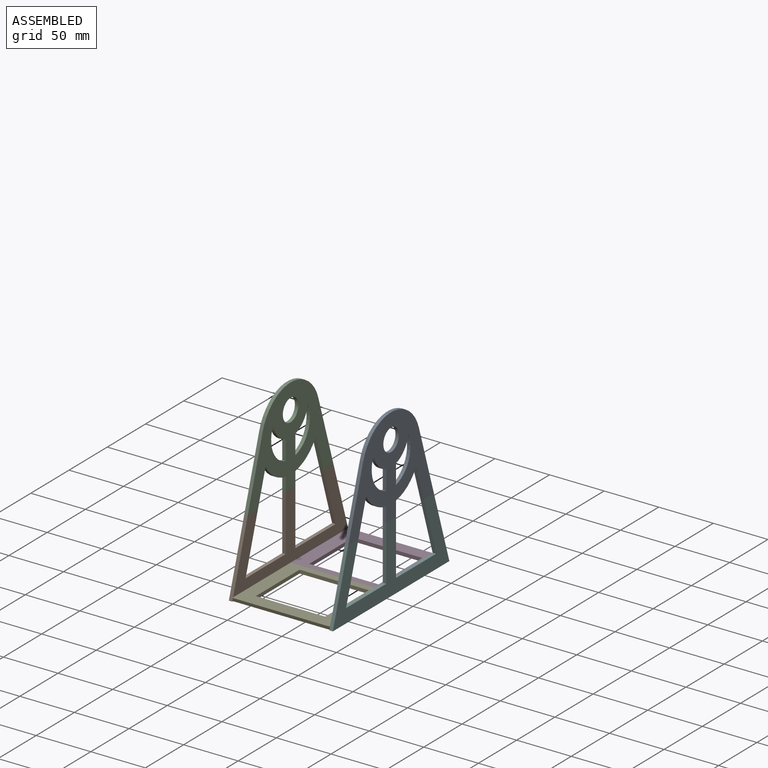
[diagram: assembled view]
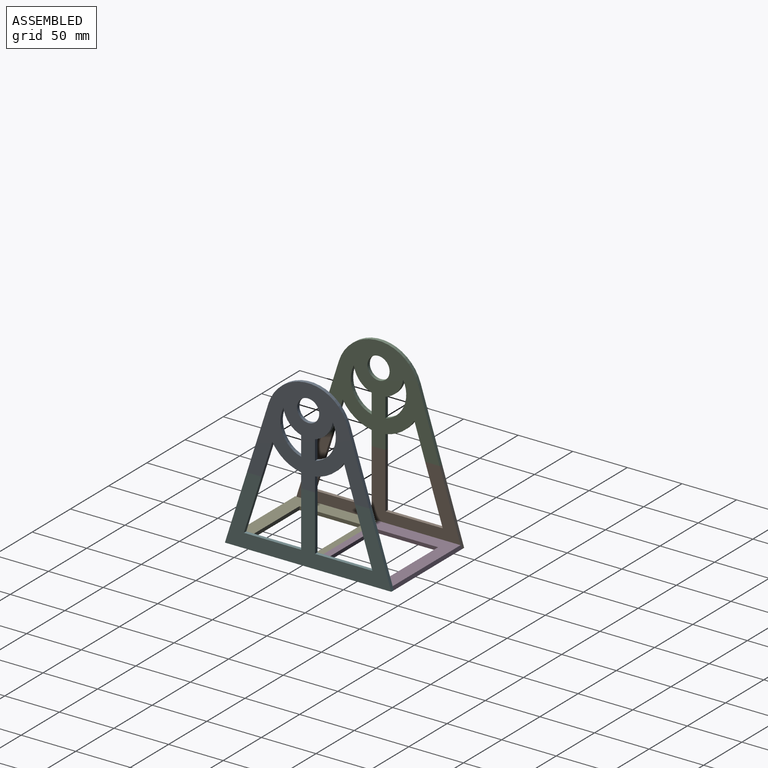
[diagram: assembled view, second angle]
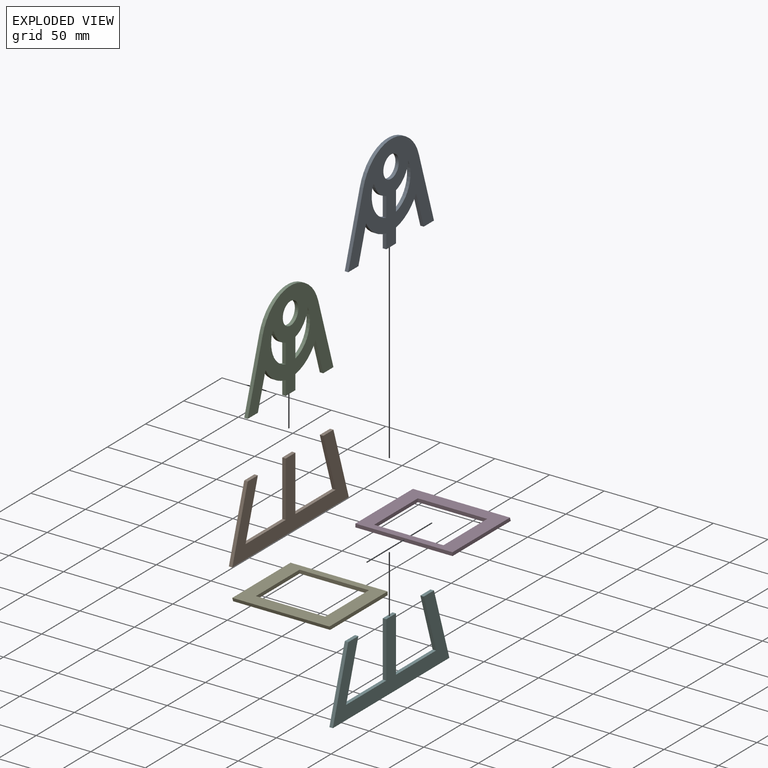
[diagram: exploded view]
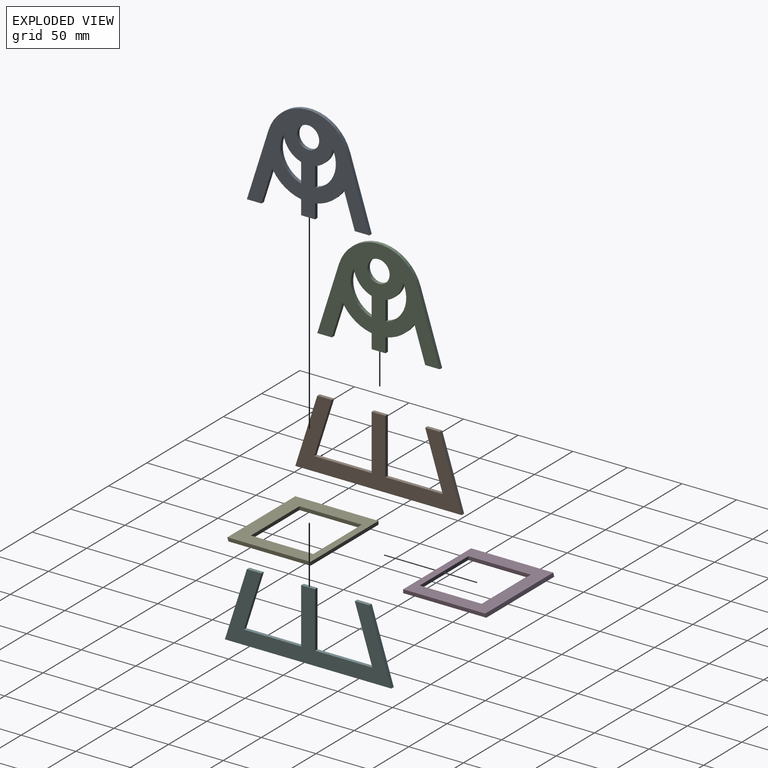
[diagram: exploded view, second angle]
ASSEMBLY  parts=6 mates=5
PART A: 21 faces, bbox 3.2x112.1x88.9 mm
  f0: plane 17.87x3.18mm, normal (0,-1,0), area 56.7mm2, adj f1,f18,f19,f20
  f1: cylinder r=25.4mm len=36.24mm, axis (-1,0,0), area 144.7mm2, adj f0,f18,f19,f20
  f2: cylinder r=38.1mm len=72.64mm, axis (-1,0,0), area 305.8mm2, adj f3,f15,f19,f20
  f3: plane 62.31x19.75mm, normal (0,-0.95,0.3), area 207.5mm2, adj f2,f4,f19,f20
  f4: plane 13.32x3.18mm, normal (0,0,-1), area 42.3mm2, adj f3,f5,f19,f20
  f5: plane 31.4x9.96mm, normal (0,0.95,-0.3), area 104.6mm2, adj f4,f6,f19,f20
  f6: cylinder r=38.1mm len=26.44mm, axis (-1,0,0), area 105.2mm2, adj f5,f7,f19,f20
  f7: plane 13.23x3.18mm, normal (0,-1,0), area 42mm2, adj f6,f8,f19,f20
  f8: plane 12.7x3.18mm, normal (0,0,-1), area 40.3mm2, adj f7,f9,f19,f20
  f9: plane 13.23x3.18mm, normal (0,1,0), area 42mm2, adj f8,f10,f19,f20
  f10: cylinder r=38.1mm len=26.44mm, axis (-1,0,0), area 105.2mm2, adj f9,f11,f19,f20
  f11: plane 31.4x9.96mm, normal (0,-0.95,-0.3), area 104.6mm2, adj f10,f12,f19,f20
  f12: plane 13.32x3.18mm, normal (0,0,-1), area 42.3mm2, adj f11,f15,f19,f20
  f13: plane 17.87x3.18mm, normal (0,1,0), area 56.7mm2, adj f14,f16,f19,f20
  f14: cylinder r=22.86mm len=18.36mm, axis (-1,0,0), area 82.1mm2, adj f13,f16,f19,f20
  f15: plane 62.31x19.75mm, normal (0,0.95,0.3), area 207.5mm2, adj f2,f12,f19,f20
  f16: cylinder r=25.4mm len=36.24mm, axis (-1,0,0), area 144.7mm2, adj f13,f14,f19,f20
  f17: cylinder r=10.16mm len=20.32mm, axis (-1,0,0), area 202.7mm2, adj f19,f20
  f18: cylinder r=22.86mm len=18.36mm, axis (-1,0,0), area 82.1mm2, adj f0,f1,f19,f20
  f19: plane 112.14x88.9mm, normal (1,0,0), area 4809.1mm2, adj f0,f1,f2,f3,f4,f5,f6,f7
  f20: plane 112.14x88.9mm, normal (-1,0,0), area 4809.1mm2, adj f0,f1,f2,f3,f4,f5,f6,f7
PART B: 14 faces, bbox 3.2x152.4x63.5 mm
  f0: plane 50.8x3.18mm, normal (0,1,0), area 161.3mm2, adj f1,f11,f12,f13
  f1: plane 12.7x3.18mm, normal (0,0,1), area 40.3mm2, adj f0,f2,f12,f13
  f2: plane 50.8x3.18mm, normal (0,-1,0), area 161.3mm2, adj f1,f3,f12,f13
  f3: plane 52.5x3.18mm, normal (0,0,1), area 166.7mm2, adj f2,f4,f12,f13
  f4: plane 50.8x16.1mm, normal (0,0.95,-0.3), area 169.2mm2, adj f3,f5,f12,f13
  f5: plane 13.32x3.18mm, normal (0,0,1), area 42.3mm2, adj f4,f6,f12,f13
  f6: plane 63.5x20.13mm, normal (0,-0.95,0.3), area 211.5mm2, adj f5,f7,f12,f13
  f7: plane 152.4x3.18mm, normal (0,0,-1), area 483.9mm2, adj f6,f8,f12,f13
  f8: plane 63.5x20.13mm, normal (0,0.95,0.3), area 211.5mm2, adj f7,f9,f12,f13
  f9: plane 13.32x3.18mm, normal (0,0,1), area 42.3mm2, adj f8,f10,f12,f13
  f10: plane 50.8x16.1mm, normal (0,-0.95,-0.3), area 169.2mm2, adj f9,f11,f12,f13
  f11: plane 52.5x3.18mm, normal (0,0,1), area 166.7mm2, adj f0,f10,f12,f13
  f12: plane 152.4x63.5mm, normal (1,0,0), area 3883.1mm2, adj f0,f1,f2,f3,f4,f5,f6,f7
  f13: plane 152.4x63.5mm, normal (-1,0,0), area 3883.1mm2, adj f0,f1,f2,f3,f4,f5,f6,f7
PART C: same geometry as A
PART D: 10 faces, bbox 3.2x76.2x88.9 mm
  f0: plane 57.15x3.18mm, normal (0,0,1), area 181.5mm2, adj f1,f6,f7,f8
  f1: plane 63.5x3.18mm, normal (0,1,0), area 201.6mm2, adj f0,f2,f7,f8
  f2: plane 57.15x3.18mm, normal (0,0,-1), area 181.5mm2, adj f1,f6,f7,f8
  f3: plane 88.9x3.18mm, normal (0,-1,0), area 282.3mm2, adj f4,f5,f7,f8
  f4: plane 76.2x3.18mm, normal (0,0,-1), area 240.3mm2, adj f3,f7,f8,f9
  f5: plane 76.2x3.18mm, normal (0,0,1), area 240.3mm2, adj f3,f7,f8,f9
  f6: plane 63.5x3.18mm, normal (0,-1,0), area 201.6mm2, adj f0,f2,f7,f8
  f7: plane 88.9x76.2mm, normal (1,0,0), area 3145.2mm2, adj f0,f1,f2,f3,f4,f5,f6,f9
  f8: plane 88.9x75.19mm, normal (-1,0,0), area 3055.7mm2, adj f0,f1,f2,f3,f4,f5,f6,f9
  f9: plane 88.9x3.18mm, normal (-0.3,0.95,0), area 296.1mm2, adj f4,f5,f7,f8
PART E: same geometry as D
PART F: same geometry as B
PLACE A rot(axis=(-0.21,-0.68,-0.7),0deg) t=(126.07,8.27,62.58)mm
PLACE B rot(axis=(-0.21,-0.68,-0.7),0deg) t=(34,8.2,64.29)mm
PLACE C rot(axis=(-0.21,-0.68,-0.7),0deg) t=(34,8.27,62.58)mm
PLACE D rot(axis=(0,1,0),90deg) t=(181.82,179.26,-48.55)mm
PLACE E rot(axis=(0.71,0,0.71),180deg) t=(181.82,-162.73,-51.72)mm
PLACE F rot(axis=(-0.21,-0.68,-0.7),0deg) t=(126.07,8.2,64.29)mm
MATE fastened F.f13 <-> D.f5  axis (-1,0,0) through (126.07,8.27,-51.72)mm
MATE fastened E.f3 <-> D.f3  axis (0,1,0) through (81.62,8.27,-50.13)mm
MATE fastened E.f4 <-> B.f12  axis (-1,0,0) through (37.17,8.27,-51.72)mm
MATE fastened B.f1 <-> C.f8  axis (0,0,1) through (35.58,8.27,11.78)mm
MATE fastened F.f1 <-> A.f8  axis (0,0,1) through (127.66,8.27,11.78)mm
